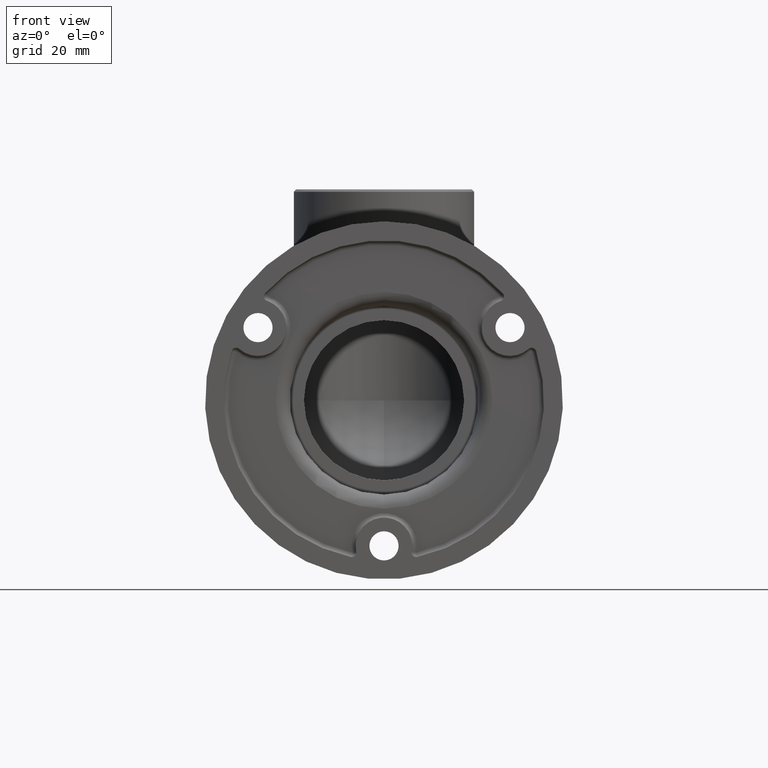
[diagram: clean part render]
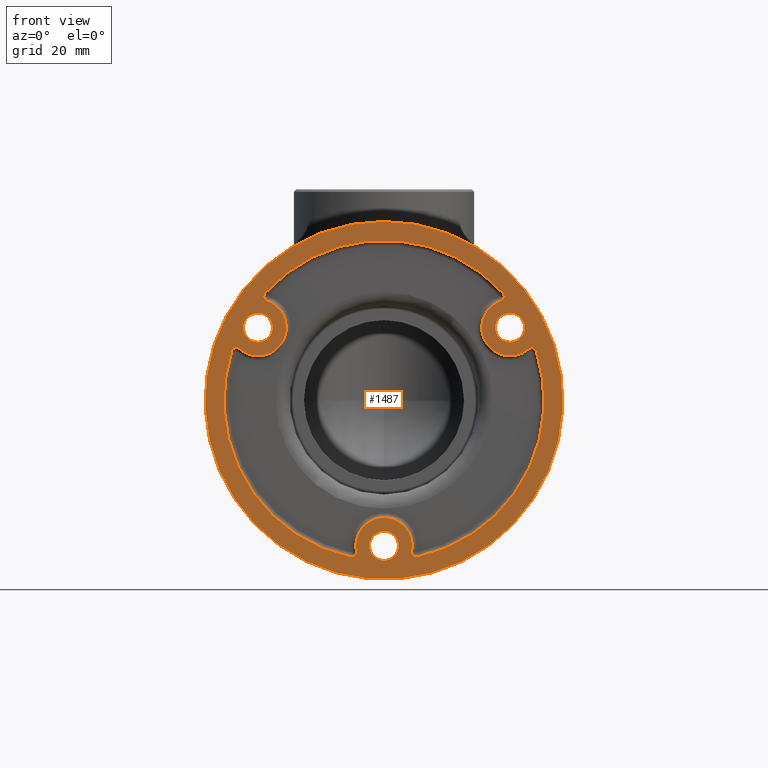
[diagram: same view with one face highlighted and labeled with its STEP entity id]
A machine part, front view. The second image highlights one B-rep face of the part: STEP entity #1487.
In plain terms, the highlighted planar face has unit normal (0, -1, 0).
Its self-contained STEP definition (entity closure, byte-faithful):
#120 = CIRCLE ( 'NONE', #2954, 3.099999999999998800 ) ;
#223 = EDGE_CURVE ( 'NONE', #14114, #14114, #14898, .T. ) ;
#270 = CARTESIAN_POINT ( 'NONE',  ( 5.882510651714707000, 0.0000000000000000000, -32.08155339805825400 ) ) ;
#514 = CARTESIAN_POINT ( 'NONE',  ( 0.0000000000000000000, 0.0000000000000000000, 0.0000000000000000000 ) ) ;
#587 = ORIENTED_EDGE ( 'NONE', *, *, #7980, .F. ) ;
#649 = VERTEX_POINT ( 'NONE', #5532 ) ;
#711 = CARTESIAN_POINT ( 'NONE',  ( -6.862929093667157000, 0.0000000000000000000, -32.27847896440129500 ) ) ;
#739 = DIRECTION ( 'NONE',  ( -3.469446951953611000E-015, 0.0000000000000000000, -1.000000000000000000 ) ) ;
#819 = CARTESIAN_POINT ( 'NONE',  ( -24.52251823185976300, 0.0000000000000000000, 22.08271042168749400 ) ) ;
#1004 = AXIS2_PLACEMENT_3D ( 'NONE', #514, #8690, #9864 ) ;
#1134 = EDGE_CURVE ( 'NONE', #13857, #7343, #1402, .T. ) ;
#1402 = CIRCLE ( 'NONE', #5147, 34.00000000000000000 ) ;
#1430 = EDGE_CURVE ( 'NONE', #5332, #7343, #10973, .T. ) ;
#1487 = ADVANCED_FACE ( 'NONE', ( #10046, #7117, #6935, #7858, #4003 ), #1626, .T. ) ;
#1488 = AXIS2_PLACEMENT_3D ( 'NONE', #2811, #7646, #13398 ) ;
#1594 = DIRECTION ( 'NONE',  ( 0.0000000000000000000, -1.000000000000000000, 0.0000000000000000000 ) ) ;
#1626 = PLANE ( 'NONE',  #8294 ) ;
#1644 = DIRECTION ( 'NONE',  ( 0.0000000000000000000, 0.0000000000000000000, -1.000000000000000000 ) ) ;
#1736 = DIRECTION ( 'NONE',  ( -0.0000000000000000000, 1.000000000000000000, -0.0000000000000000000 ) ) ;
#1942 = VERTEX_POINT ( 'NONE', #3838 ) ;
#2013 = ORIENTED_EDGE ( 'NONE', *, *, #9494, .F. ) ;
#2077 = DIRECTION ( 'NONE',  ( 0.0000000000000000000, -1.000000000000000000, 0.0000000000000000000 ) ) ;
#2117 = ORIENTED_EDGE ( 'NONE', *, *, #10676, .F. ) ;
#2122 = CARTESIAN_POINT ( 'NONE',  ( 0.0000000000000000000, 0.0000000000000000000, -33.99999999999999300 ) ) ;
#2357 = CIRCLE ( 'NONE', #2374, 1.000000000000000900 ) ;
#2374 = AXIS2_PLACEMENT_3D ( 'NONE', #711, #1736, #5405 ) ;
#2385 = CIRCLE ( 'NONE', #13678, 3.099999999999998800 ) ;
#2412 = CARTESIAN_POINT ( 'NONE',  ( -5.882510651714707000, 0.0000000000000000000, -32.08155339805825400 ) ) ;
#2512 = CARTESIAN_POINT ( 'NONE',  ( -30.72469556144287800, 0.0000000000000000000, 10.94637303661134800 ) ) ;
#2573 = AXIS2_PLACEMENT_3D ( 'NONE', #4152, #7644, #5335 ) ;
#2811 = CARTESIAN_POINT ( 'NONE',  ( 31.38544732552667300, 0.0000000000000000000, 10.19576854271372200 ) ) ;
#2867 = DIRECTION ( 'NONE',  ( 0.0000000000000000000, 0.0000000000000000000, -1.000000000000000000 ) ) ;
#2935 = CIRCLE ( 'NONE', #3015, 6.000000000000000000 ) ;
#2954 = AXIS2_PLACEMENT_3D ( 'NONE', #9863, #1594, #1644 ) ;
#3015 = AXIS2_PLACEMENT_3D ( 'NONE', #7702, #7847, #6561 ) ;
#3198 = CARTESIAN_POINT ( 'NONE',  ( -31.38544732552681900, 0.0000000000000000000, 10.19576854271327100 ) ) ;
#3279 = DIRECTION ( 'NONE',  ( -0.0000000000000000000, 1.000000000000000000, -0.0000000000000000000 ) ) ;
#3435 = VERTEX_POINT ( 'NONE', #2122 ) ;
#3483 = EDGE_LOOP ( 'NONE', ( #2117 ) ) ;
#3519 = CARTESIAN_POINT ( 'NONE',  ( 30.72469556144273300, 0.0000000000000000000, 10.94637303661177600 ) ) ;
#3614 = VERTEX_POINT ( 'NONE', #10918 ) ;
#3674 = CARTESIAN_POINT ( 'NONE',  ( 6.862929093667171200, 0.0000000000000000000, -32.27847896440129500 ) ) ;
#3769 = CARTESIAN_POINT ( 'NONE',  ( -24.84218490972826700, 0.0000000000000000000, 21.13518036144638800 ) ) ;
#3838 = CARTESIAN_POINT ( 'NONE',  ( -32.33652148690642700, 0.0000000000000000000, 10.50473122582579500 ) ) ;
#3866 = ORIENTED_EDGE ( 'NONE', *, *, #7919, .F. ) ;
#3877 = CIRCLE ( 'NONE', #10019, 34.00000000000000000 ) ;
#4003 = FACE_BOUND ( 'NONE', #15232, .T. ) ;
#4047 = ORIENTED_EDGE ( 'NONE', *, *, #11851, .F. ) ;
#4119 = AXIS2_PLACEMENT_3D ( 'NONE', #3198, #8030, #11570 ) ;
#4152 = CARTESIAN_POINT ( 'NONE',  ( -26.76018497693929300, 0.0000000000000000000, 15.44999999999975100 ) ) ;
#4199 = CARTESIAN_POINT ( 'NONE',  ( 0.0000000000000000000, 0.0000000000000000000, 37.99999999999999300 ) ) ;
#4212 = ORIENTED_EDGE ( 'NONE', *, *, #1134, .F. ) ;
#4249 = CIRCLE ( 'NONE', #4119, 1.000000000000000900 ) ;
#4348 = CARTESIAN_POINT ( 'NONE',  ( 26.76018497693908300, 0.0000000000000000000, 12.35000000000012600 ) ) ;
#4617 = AXIS2_PLACEMENT_3D ( 'NONE', #10304, #3279, #11487 ) ;
#4712 = VERTEX_POINT ( 'NONE', #4348 ) ;
#4792 = EDGE_CURVE ( 'NONE', #3614, #9101, #10356, .T. ) ;
#4859 = EDGE_LOOP ( 'NONE', ( #13197 ) ) ;
#5122 = CARTESIAN_POINT ( 'NONE',  ( -25.26562484494642600, 0.0000000000000000000, 22.75188346476893700 ) ) ;
#5147 = AXIS2_PLACEMENT_3D ( 'NONE', #11036, #7506, #2867 ) ;
#5332 = VERTEX_POINT ( 'NONE', #3519 ) ;
#5335 = DIRECTION ( 'NONE',  ( 0.0000000000000000000, 0.0000000000000000000, -1.000000000000000000 ) ) ;
#5379 = EDGE_LOOP ( 'NONE', ( #10981 ) ) ;
#5405 = DIRECTION ( 'NONE',  ( 0.0000000000000000000, 0.0000000000000000000, -1.000000000000000000 ) ) ;
#5482 = CARTESIAN_POINT ( 'NONE',  ( 24.52251823185945100, 0.0000000000000000000, 22.08271042168784200 ) ) ;
#5511 = DIRECTION ( 'NONE',  ( 0.0000000000000000000, 0.0000000000000000000, -1.000000000000000000 ) ) ;
#5532 = CARTESIAN_POINT ( 'NONE',  ( -26.76018497693929300, 0.0000000000000000000, 12.34999999999975100 ) ) ;
#6083 = DIRECTION ( 'NONE',  ( -0.0000000000000000000, 1.000000000000000000, -0.0000000000000000000 ) ) ;
#6135 = DIRECTION ( 'NONE',  ( -5.204170427930416600E-015, 0.0000000000000000000, -1.000000000000000000 ) ) ;
#6161 = EDGE_CURVE ( 'NONE', #13857, #10950, #7210, .T. ) ;
#6386 = EDGE_CURVE ( 'NONE', #8439, #14409, #14212, .T. ) ;
#6421 = ORIENTED_EDGE ( 'NONE', *, *, #6386, .T. ) ;
#6422 = DIRECTION ( 'NONE',  ( 0.0000000000000000000, -1.000000000000000000, 0.0000000000000000000 ) ) ;
#6561 = DIRECTION ( 'NONE',  ( 0.0000000000000000000, 0.0000000000000000000, -1.000000000000000000 ) ) ;
#6594 = VERTEX_POINT ( 'NONE', #2412 ) ;
#6616 = DIRECTION ( 'NONE',  ( -0.0000000000000000000, 1.000000000000000000, -0.0000000000000000000 ) ) ;
#6926 = CARTESIAN_POINT ( 'NONE',  ( 26.76018497693908300, 0.0000000000000000000, 15.45000000000012500 ) ) ;
#6935 = FACE_BOUND ( 'NONE', #3483, .T. ) ;
#7117 = FACE_BOUND ( 'NONE', #8131, .T. ) ;
#7210 = CIRCLE ( 'NONE', #14451, 1.000000000000000900 ) ;
#7343 = VERTEX_POINT ( 'NONE', #10026 ) ;
#7419 = DIRECTION ( 'NONE',  ( 0.0000000000000000000, 0.0000000000000000000, -1.000000000000000000 ) ) ;
#7428 = EDGE_CURVE ( 'NONE', #1942, #12970, #4249, .T. ) ;
#7497 = DIRECTION ( 'NONE',  ( 0.0000000000000000000, -0.0000000000000000000, -1.000000000000000000 ) ) ;
#7506 = DIRECTION ( 'NONE',  ( 0.0000000000000000000, -1.000000000000000000, 0.0000000000000000000 ) ) ;
#7644 = DIRECTION ( 'NONE',  ( 0.0000000000000000000, -1.000000000000000000, 0.0000000000000000000 ) ) ;
#7646 = DIRECTION ( 'NONE',  ( -0.0000000000000000000, 1.000000000000000000, -0.0000000000000000000 ) ) ;
#7691 = DIRECTION ( 'NONE',  ( 0.0000000000000000000, 1.000000000000000000, 0.0000000000000000000 ) ) ;
#7702 = CARTESIAN_POINT ( 'NONE',  ( 26.76018497693908300, -0.0000000000000000000, 15.45000000000012500 ) ) ;
#7847 = DIRECTION ( 'NONE',  ( -0.0000000000000000000, 1.000000000000000000, -0.0000000000000000000 ) ) ;
#7858 = FACE_BOUND ( 'NONE', #4859, .T. ) ;
#7887 = AXIS2_PLACEMENT_3D ( 'NONE', #13696, #7691, #14917 ) ;
#7919 = EDGE_CURVE ( 'NONE', #5332, #9101, #2935, .T. ) ;
#7980 = EDGE_CURVE ( 'NONE', #6594, #10950, #10842, .T. ) ;
#8030 = DIRECTION ( 'NONE',  ( -0.0000000000000000000, 1.000000000000000000, -0.0000000000000000000 ) ) ;
#8131 = EDGE_LOOP ( 'NONE', ( #10208 ) ) ;
#8294 = AXIS2_PLACEMENT_3D ( 'NONE', #10049, #12147, #7497 ) ;
#8404 = AXIS2_PLACEMENT_3D ( 'NONE', #5482, #6616, #739 ) ;
#8439 = VERTEX_POINT ( 'NONE', #3769 ) ;
#8690 = DIRECTION ( 'NONE',  ( 0.0000000000000000000, -1.000000000000000000, 0.0000000000000000000 ) ) ;
#8826 = CARTESIAN_POINT ( 'NONE',  ( 24.84218490972797300, 0.0000000000000000000, 21.13518036144673200 ) ) ;
#8874 = CARTESIAN_POINT ( 'NONE',  ( 0.0000000000000000000, 0.0000000000000000000, 0.0000000000000000000 ) ) ;
#8888 = ORIENTED_EDGE ( 'NONE', *, *, #11980, .T. ) ;
#8954 = CARTESIAN_POINT ( 'NONE',  ( -7.070896641960102300, 0.0000000000000000000, -33.25661469059527800 ) ) ;
#9101 = VERTEX_POINT ( 'NONE', #8826 ) ;
#9276 = AXIS2_PLACEMENT_3D ( 'NONE', #14488, #12119, #7419 ) ;
#9494 = EDGE_CURVE ( 'NONE', #3614, #14409, #3877, .T. ) ;
#9863 = CARTESIAN_POINT ( 'NONE',  ( 0.0000000000000000000, 0.0000000000000000000, -30.89999999999999900 ) ) ;
#9864 = DIRECTION ( 'NONE',  ( 0.0000000000000000000, 0.0000000000000000000, -1.000000000000000000 ) ) ;
#10019 = AXIS2_PLACEMENT_3D ( 'NONE', #8874, #6422, #13348 ) ;
#10026 = CARTESIAN_POINT ( 'NONE',  ( 32.33652148690627100, 0.0000000000000000000, 10.50473122582626000 ) ) ;
#10034 = CIRCLE ( 'NONE', #1004, 34.00000000000000000 ) ;
#10046 = FACE_OUTER_BOUND ( 'NONE', #5379, .T. ) ;
#10049 = CARTESIAN_POINT ( 'NONE',  ( 0.0000000000000000000, 0.0000000000000000000, 0.0000000000000000000 ) ) ;
#10050 = CIRCLE ( 'NONE', #2573, 3.099999999999998800 ) ;
#10208 = ORIENTED_EDGE ( 'NONE', *, *, #13792, .F. ) ;
#10304 = CARTESIAN_POINT ( 'NONE',  ( 0.0000000000000000000, 0.0000000000000000000, -30.89999999999999900 ) ) ;
#10356 = CIRCLE ( 'NONE', #8404, 1.000000000000000900 ) ;
#10599 = ORIENTED_EDGE ( 'NONE', *, *, #4792, .T. ) ;
#10676 = EDGE_CURVE ( 'NONE', #4712, #4712, #2385, .T. ) ;
#10842 = CIRCLE ( 'NONE', #4617, 5.999999999999998200 ) ;
#10918 = CARTESIAN_POINT ( 'NONE',  ( 25.26562484494610000, 0.0000000000000000000, 22.75188346476929600 ) ) ;
#10950 = VERTEX_POINT ( 'NONE', #270 ) ;
#10973 = CIRCLE ( 'NONE', #1488, 1.000000000000000900 ) ;
#10981 = ORIENTED_EDGE ( 'NONE', *, *, #223, .F. ) ;
#11036 = CARTESIAN_POINT ( 'NONE',  ( 0.0000000000000000000, 0.0000000000000000000, 0.0000000000000000000 ) ) ;
#11372 = ORIENTED_EDGE ( 'NONE', *, *, #1430, .T. ) ;
#11487 = DIRECTION ( 'NONE',  ( 0.0000000000000000000, 0.0000000000000000000, -1.000000000000000000 ) ) ;
#11570 = DIRECTION ( 'NONE',  ( 0.0000000000000000000, 0.0000000000000000000, -1.000000000000000000 ) ) ;
#11851 = EDGE_CURVE ( 'NONE', #8439, #12970, #11902, .T. ) ;
#11902 = CIRCLE ( 'NONE', #9276, 6.000000000000000000 ) ;
#11980 = EDGE_CURVE ( 'NONE', #6594, #13360, #2357, .T. ) ;
#12119 = DIRECTION ( 'NONE',  ( -0.0000000000000000000, 1.000000000000000000, -0.0000000000000000000 ) ) ;
#12147 = DIRECTION ( 'NONE',  ( 0.0000000000000000000, -1.000000000000000000, 0.0000000000000000000 ) ) ;
#12320 = CARTESIAN_POINT ( 'NONE',  ( 7.070896641960116500, 0.0000000000000000000, -33.25661469059527100 ) ) ;
#12531 = DIRECTION ( 'NONE',  ( -0.0000000000000000000, 1.000000000000000000, -0.0000000000000000000 ) ) ;
#12769 = AXIS2_PLACEMENT_3D ( 'NONE', #819, #12531, #5511 ) ;
#12970 = VERTEX_POINT ( 'NONE', #2512 ) ;
#13150 = ORIENTED_EDGE ( 'NONE', *, *, #7428, .T. ) ;
#13197 = ORIENTED_EDGE ( 'NONE', *, *, #14096, .F. ) ;
#13348 = DIRECTION ( 'NONE',  ( 0.0000000000000000000, 0.0000000000000000000, -1.000000000000000000 ) ) ;
#13360 = VERTEX_POINT ( 'NONE', #8954 ) ;
#13398 = DIRECTION ( 'NONE',  ( 0.0000000000000000000, 0.0000000000000000000, -1.000000000000000000 ) ) ;
#13678 = AXIS2_PLACEMENT_3D ( 'NONE', #6926, #2077, #15031 ) ;
#13696 = CARTESIAN_POINT ( 'NONE',  ( 0.0000000000000000000, 0.0000000000000000000, 0.0000000000000000000 ) ) ;
#13792 = EDGE_CURVE ( 'NONE', #3435, #3435, #120, .T. ) ;
#13857 = VERTEX_POINT ( 'NONE', #12320 ) ;
#14096 = EDGE_CURVE ( 'NONE', #649, #649, #10050, .T. ) ;
#14114 = VERTEX_POINT ( 'NONE', #4199 ) ;
#14212 = CIRCLE ( 'NONE', #12769, 1.000000000000000900 ) ;
#14409 = VERTEX_POINT ( 'NONE', #5122 ) ;
#14451 = AXIS2_PLACEMENT_3D ( 'NONE', #3674, #6083, #6135 ) ;
#14488 = CARTESIAN_POINT ( 'NONE',  ( -26.76018497693929300, 0.0000000000000000000, 15.44999999999975100 ) ) ;
#14838 = EDGE_CURVE ( 'NONE', #1942, #13360, #10034, .T. ) ;
#14898 = CIRCLE ( 'NONE', #7887, 37.99999999999999300 ) ;
#14917 = DIRECTION ( 'NONE',  ( 0.0000000000000000000, 0.0000000000000000000, 1.000000000000000000 ) ) ;
#14946 = ORIENTED_EDGE ( 'NONE', *, *, #6161, .T. ) ;
#15013 = ORIENTED_EDGE ( 'NONE', *, *, #14838, .F. ) ;
#15031 = DIRECTION ( 'NONE',  ( 0.0000000000000000000, 0.0000000000000000000, -1.000000000000000000 ) ) ;
#15232 = EDGE_LOOP ( 'NONE', ( #15013, #13150, #4047, #6421, #2013, #10599, #3866, #11372, #4212, #14946, #587, #8888 ) ) ;